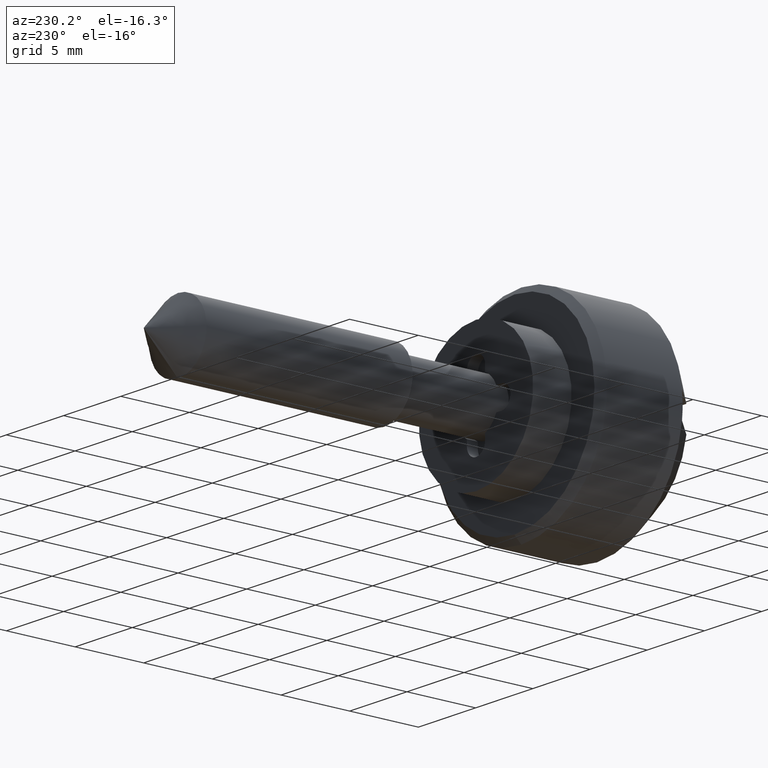
[diagram: clean part render]
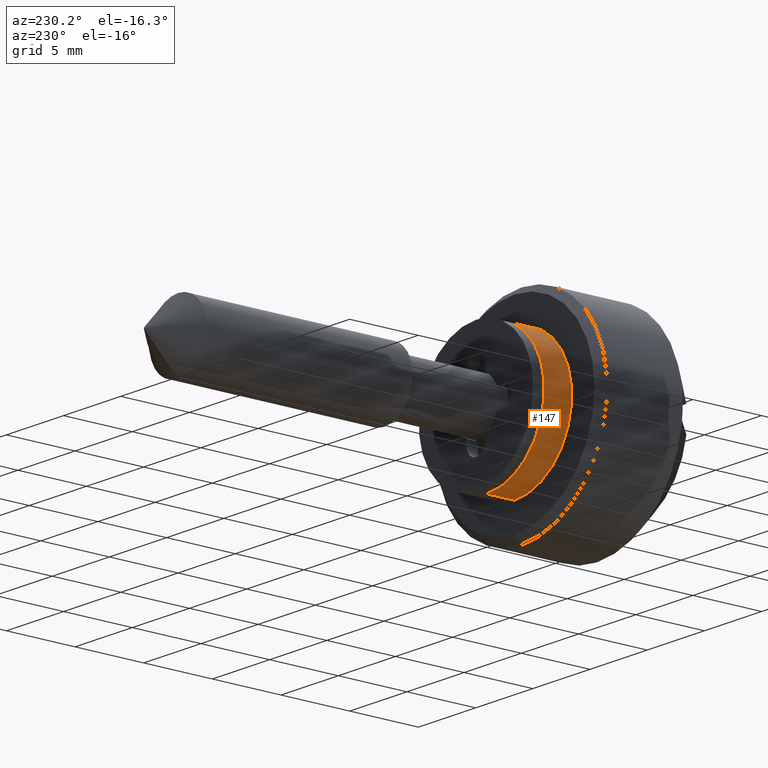
[diagram: same view with one face highlighted and labeled with its STEP entity id]
A machine part, auxiliary view. The second image highlights one B-rep face of the part: STEP entity #147.
In plain terms, the highlighted cylindrical surface (partial cylindrical patch) has radius 5 mm, axis along (0, -1, -0).
Its self-contained STEP definition (entity closure, byte-faithful):
#147=ADVANCED_FACE('',(#510),#509,.T.);
#509=CYLINDRICAL_SURFACE('',#786,5.00000000000E+00);
#510=FACE_OUTER_BOUND('',#787,.T.);
#783=CARTESIAN_POINT('',(-1.00000000000E+03,0.00000000000E+00,0.00000000000E+00));
#784=DIRECTION('',(-1.00000000000E+00,-0.00000000000E+00,-0.00000000000E+00));
#785=DIRECTION('',(0.00000000000E+00,1.22464679915E-16,-1.00000000000E+00));
#786=AXIS2_PLACEMENT_3D('',#783,#784,#785);
#787=EDGE_LOOP('',(#998,#999,#1000,#1001));
#998=ORIENTED_EDGE('',*,*,#1097,.F.);
#999=ORIENTED_EDGE('',*,*,#1116,.T.);
#1000=ORIENTED_EDGE('',*,*,#1095,.F.);
#1001=ORIENTED_EDGE('',*,*,#1117,.F.);
#1095=EDGE_CURVE('',#1580,#1579,#1587,.T.);
#1097=EDGE_CURVE('',#1594,#1593,#1601,.T.);
#1116=EDGE_CURVE('',#1594,#1579,#1727,.T.);
#1117=EDGE_CURVE('',#1593,#1580,#1733,.T.);
#1579=VERTEX_POINT('',#2054);
#1580=VERTEX_POINT('',#2055);
#1587=CIRCLE('',#2063,5.00000000000E+00);
#1593=VERTEX_POINT('',#2064);
#1594=VERTEX_POINT('',#2065);
#1601=CIRCLE('',#2073,5.00000000000E+00);
#1727=(BOUNDED_CURVE() B_SPLINE_CURVE(1,(#2150,#2151),.UNSPECIFIED.,.F.,.F.) B_SPLINE_CURVE_WITH_KNOTS((2,2),(8.33333134656E-02,9.16666653270E-01),.UNSPECIFIED.) CURVE() GEOMETRIC_REPRESENTATION_ITEM() RATIONAL_B_SPLINE_CURVE((1.00000000000E+00,1.00000000000E+00)) REPRESENTATION_ITEM('') );
#1733=(BOUNDED_CURVE() B_SPLINE_CURVE(1,(#2152,#2153),.UNSPECIFIED.,.F.,.F.) B_SPLINE_CURVE_WITH_KNOTS((2,2),(8.33333333333E-02,9.16666666667E-01),.UNSPECIFIED.) CURVE() GEOMETRIC_REPRESENTATION_ITEM() RATIONAL_B_SPLINE_CURVE((7.50000000000E-01,7.50000000000E-01)) REPRESENTATION_ITEM('') );
#2054=CARTESIAN_POINT('',(-2.00000000000E+00,0.00000000000E+00,-5.00000000000E+00));
#2055=CARTESIAN_POINT('',(-2.00000000000E+00,5.92118946467E-16,5.00000000000E+00));
#2060=CARTESIAN_POINT('',(-2.00000000000E+00,0.00000000000E+00,0.00000000000E+00));
#2061=DIRECTION('',(-1.00000000000E+00,0.00000000000E+00,-0.00000000000E+00));
#2062=DIRECTION('',(0.00000000000E+00,-1.22460635382E-16,-1.00000000000E+00));
#2063=AXIS2_PLACEMENT_3D('',#2060,#2061,#2062);
#2064=CARTESIAN_POINT('',(0.00000000000E+00,0.00000000000E+00,5.00000000000E+00));
#2065=CARTESIAN_POINT('',(0.00000000000E+00,5.92118946467E-16,-5.00000000000E+00));
#2070=CARTESIAN_POINT('',(0.00000000000E+00,0.00000000000E+00,0.00000000000E+00));
#2071=DIRECTION('',(1.00000000000E+00,0.00000000000E+00,-0.00000000000E+00));
#2072=DIRECTION('',(0.00000000000E+00,-1.22460635382E-16,1.00000000000E+00));
#2073=AXIS2_PLACEMENT_3D('',#2070,#2071,#2072);
#2150=CARTESIAN_POINT('',(4.76825537110E-08,6.12323399574E-16,-5.00000000000E+00));
#2151=CARTESIAN_POINT('',(-1.99999996785E+00,6.12323399574E-16,-5.00000000000E+00));
#2152=CARTESIAN_POINT('',(3.70074341542E-17,-2.96059473233E-16,5.00000000000E+00));
#2153=CARTESIAN_POINT('',(-2.00000000000E+00,-2.96059473233E-16,5.00000000000E+00));